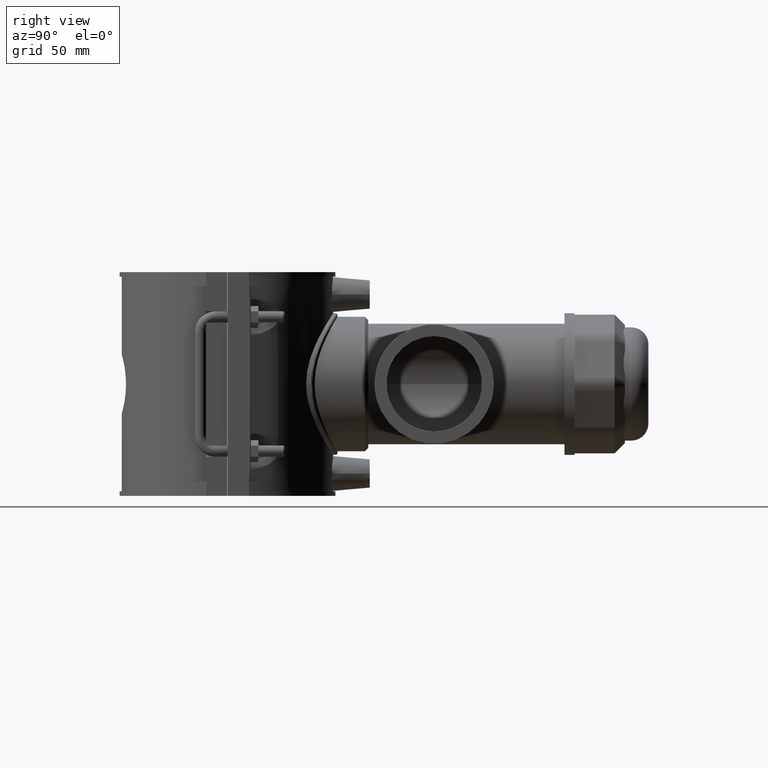
[diagram: clean part render]
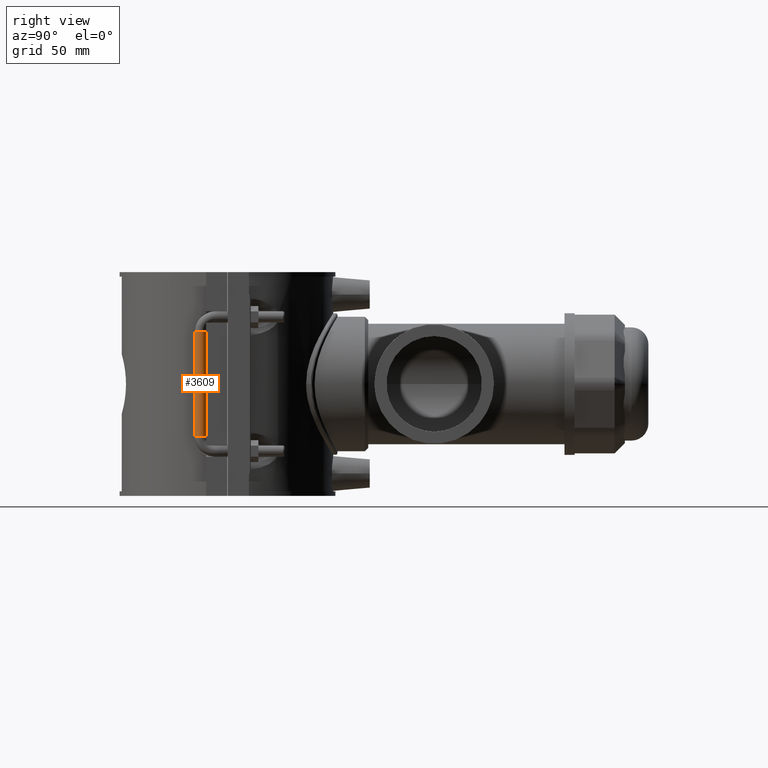
[diagram: same view with one face highlighted and labeled with its STEP entity id]
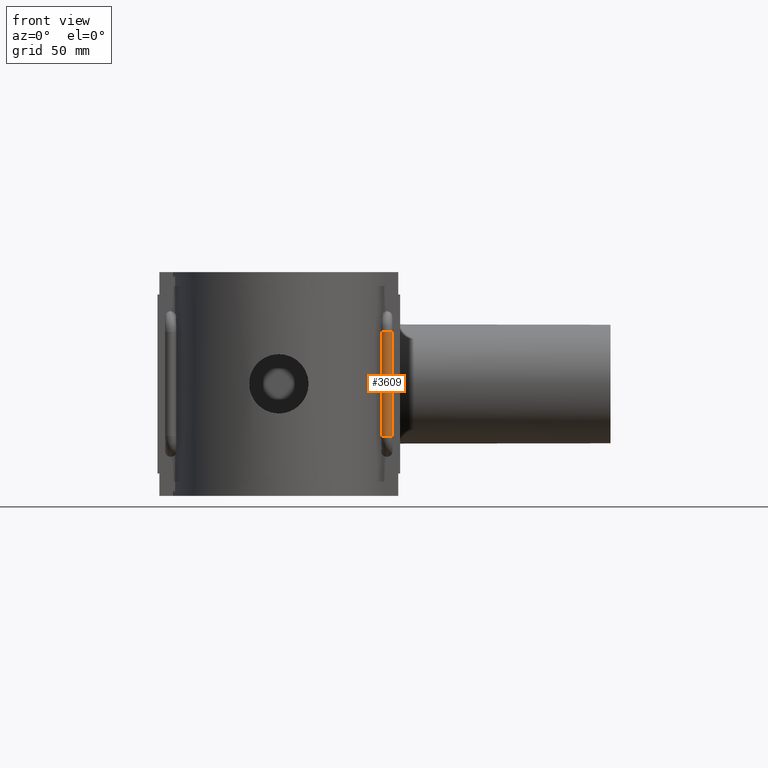
[diagram: same view with one face highlighted and labeled with its STEP entity id]
A machine part, right view. The second image highlights one B-rep face of the part: STEP entity #3609.
A second angle (front view) of the same face is appended — the face is thin or edge-on in the first view.
In plain terms, the highlighted cylindrical surface (edge-blend (fillet) strip) has radius 3 mm, axis along (0, 0, -1).
Its self-contained STEP definition (entity closure, byte-faithful):
#150=LINE('',#6181,#449);
#301=LINE('',#7384,#600);
#449=VECTOR('',#4381,54.7999999999999);
#600=VECTOR('',#4838,54.7999999999999);
#821=CYLINDRICAL_SURFACE('',#3940,3.);
#1009=FACE_OUTER_BOUND('',#1273,.T.);
#1273=EDGE_LOOP('',(#3110,#3111,#3112,#3113));
#1421=CIRCLE('',#3931,3.);
#1426=CIRCLE('',#3937,3.);
#1583=VERTEX_POINT('',#6169);
#1584=VERTEX_POINT('',#6180);
#1736=VERTEX_POINT('',#7236);
#1744=VERTEX_POINT('',#7302);
#1973=EDGE_CURVE('',#1583,#1584,#150,.T.);
#2204=EDGE_CURVE('',#1736,#1583,#1421,.T.);
#2220=EDGE_CURVE('',#1744,#1584,#1426,.T.);
#2224=EDGE_CURVE('',#1744,#1736,#301,.T.);
#3110=ORIENTED_EDGE('',*,*,#2224,.F.);
#3111=ORIENTED_EDGE('',*,*,#2220,.T.);
#3112=ORIENTED_EDGE('',*,*,#1973,.F.);
#3113=ORIENTED_EDGE('',*,*,#2204,.F.);
#3609=ADVANCED_FACE('',(#1009),#821,.T.);
#3931=AXIS2_PLACEMENT_3D('',#7248,#4818,#4819);
#3937=AXIS2_PLACEMENT_3D('',#7364,#4830,#4831);
#3940=AXIS2_PLACEMENT_3D('',#7383,#4836,#4837);
#4381=DIRECTION('',(0.,0.,1.));
#4818=DIRECTION('center_axis',(0.,-6.12323399573677E-17,-1.));
#4819=DIRECTION('ref_axis',(-1.,0.,0.));
#4830=DIRECTION('center_axis',(0.,-6.12323399573677E-17,-1.));
#4831=DIRECTION('ref_axis',(-1.,0.,0.));
#4836=DIRECTION('center_axis',(0.,0.,-1.));
#4837=DIRECTION('ref_axis',(-1.,0.,0.));
#4838=DIRECTION('',(0.,0.,-1.));
#6169=CARTESIAN_POINT('',(54.0083487913013,-14.0263416769,-27.4));
#6180=CARTESIAN_POINT('',(54.0083487913013,-14.0263416769,27.3999999999999));
#6181=CARTESIAN_POINT('',(54.0083487913013,-14.0263416769,27.3999999999999));
#7236=CARTESIAN_POINT('',(57.,-11.25,-27.4));
#7248=CARTESIAN_POINT('Origin',(57.,-14.2499999999994,-27.4));
#7302=CARTESIAN_POINT('',(57.,-11.25,27.3999999999999));
#7364=CARTESIAN_POINT('Origin',(57.,-14.2499999999994,27.3999999999999));
#7383=CARTESIAN_POINT('Origin',(57.,-14.2499999999994,27.3999999999999));
#7384=CARTESIAN_POINT('',(57.,-11.25,27.3999999999999));